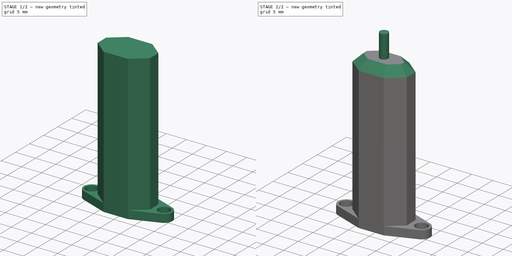
[diagram: build sequence overview — one tinted view per stage of 2, left to right]
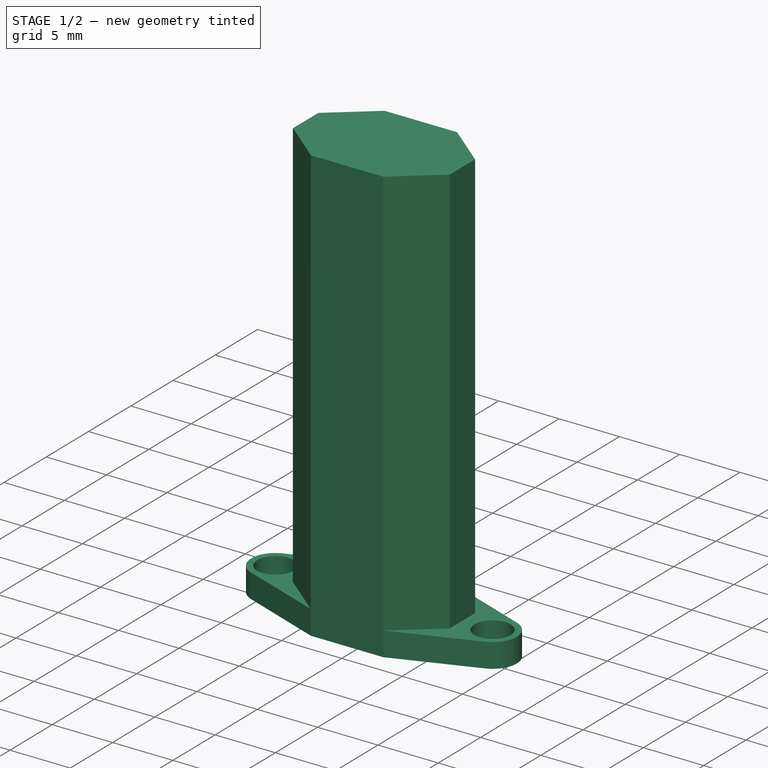
[diagram: stage 1 of 2 — iso view after this stage's code; geometry added in this stage tinted green]
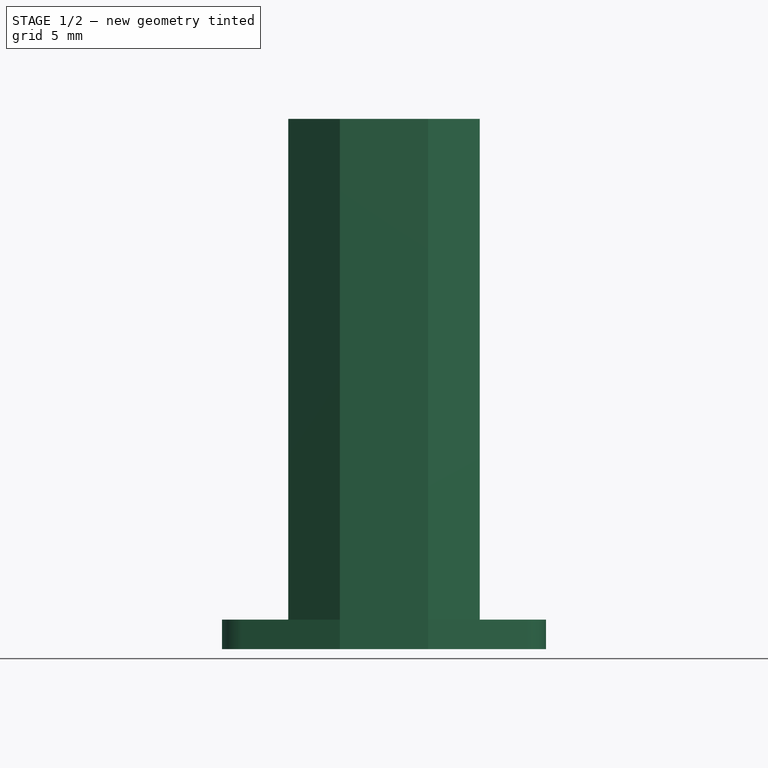
[diagram: stage 1 of 2 — front view after this stage's code; geometry added in this stage tinted green]
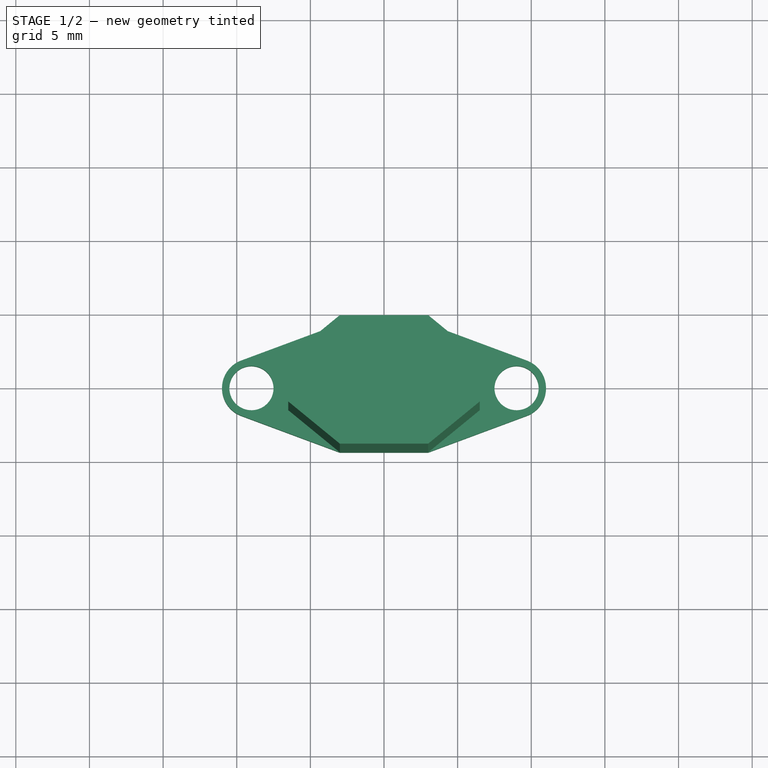
[diagram: stage 1 of 2 — top view after this stage's code; geometry added in this stage tinted green]
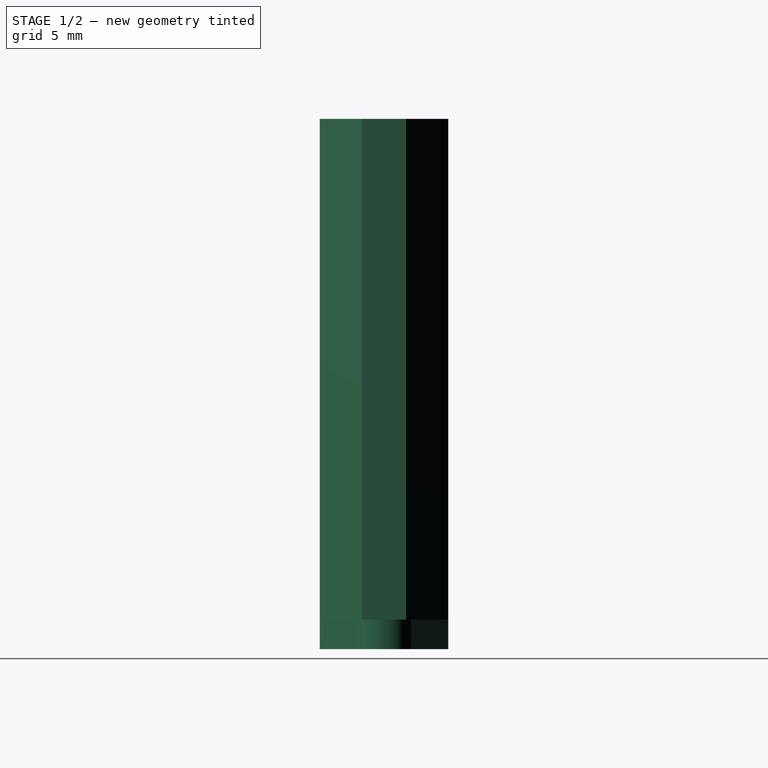
[diagram: stage 1 of 2 — right view after this stage's code; geometry added in this stage tinted green]
FCSTD DOCUMENT  (FreeCAD 0.18R14555 (Git shallow))
Label: bltouch
License: All rights reserved
LicenseURL: http://en.wikipedia.org/wiki/All_rights_reserved
objects: Sketcher::SketchObject×3, PartDesign::Pad×3, PartDesign::Chamfer×1, PartDesign::Body×1
note: 11 computed .brp shape members not serialized (recipe doc carries the construction recipe); baked Part::Feature solids carry a one-line shape summary decoded from their .brp

FEATURE [Sketcher::SketchObject] Sketch
  MapMode = 5
  Support = -> [XY_Plane]
  sketch-geometry (16):
    g0: ArcOfCircle CenterX=-9 CenterY=-7e-16 CenterZ=0 NormalX=0 NormalY=0 NormalZ=1 AngleXU=0 Radius=2 StartAngle=1.92682 EndAngle=4.35637
    g1: ArcOfCircle CenterX=9 CenterY=-4e-15 CenterZ=0 NormalX=0 NormalY=0 NormalZ=1 AngleXU=0 Radius=2 StartAngle=5.06841 EndAngle=7.49796
    g2: LineSegment StartX=-9.69709 StartY=1.87458 StartZ=0 EndX=-3 EndY=4.365 EndZ=0
    g3: LineSegment StartX=-3 StartY=4.365 StartZ=0 EndX=3 EndY=4.365 EndZ=0
    g4: LineSegment StartX=3 StartY=4.365 StartZ=0 EndX=9.69709 EndY=1.87458 EndZ=0
    g5: LineSegment StartX=9.69709 StartY=-1.87458 StartZ=0 EndX=3 EndY=-4.365 EndZ=0
    g6: LineSegment StartX=3 StartY=-4.365 StartZ=0 EndX=-3 EndY=-4.365 EndZ=0
    g7: LineSegment StartX=-3 StartY=-4.365 StartZ=0 EndX=-9.69709 EndY=-1.87458 EndZ=0
    g8: LineSegment [constr] StartX=-9.69709 StartY=1.87458 StartZ=0 EndX=9.69709 EndY=1.87458 EndZ=0
    g9: LineSegment [constr] StartX=-9.69709 StartY=-1.87458 StartZ=0 EndX=9.69709 EndY=-1.87458 EndZ=0
    g10: LineSegment [constr] StartX=3 StartY=-4.365 StartZ=0 EndX=3 EndY=4.365 EndZ=0
    g11: LineSegment [constr] StartX=-3 StartY=-4.365 StartZ=0 EndX=-3 EndY=4.365 EndZ=0
    g12: Circle CenterX=-9 CenterY=-7e-16 CenterZ=0 NormalX=0 NormalY=0 NormalZ=1 AngleXU=0 Radius=1.5
    g13: Circle CenterX=9 CenterY=-4e-15 CenterZ=0 NormalX=0 NormalY=0 NormalZ=1 AngleXU=0 Radius=1.5
    g14: LineSegment [constr] StartX=-3 StartY=4.365 StartZ=0 EndX=3 EndY=-4.365 EndZ=0
    g15: LineSegment [constr] StartX=-3 StartY=-4.365 StartZ=0 EndX=3 EndY=4.365 EndZ=0
  constraints (38):
    c: Coincident(g3,g2)
    c: Horizontal(g3)
    c: Coincident(g4,g3)
    c: Coincident(g6,g5)
    c: Coincident(g7,g6)
    c: Coincident(g8,g0)
    c: Coincident(g8,g1)
    c: Horizontal(g8)
    c: Coincident(g9,g0)
    c: Coincident(g9,g1)
    c: Horizontal(g9)
    c: Tangent(g2,g0) = 1.5708
    c: Tangent(g4,g1) = 1.5708
    c: Tangent(g5,g1) = 1.5708
    c: Tangent(g7,g0) = 1.5708
    c: Horizontal(g6)
    c: Coincident(g10,g5)
    c: Coincident(g10,g3)
    c: Vertical(g10)
    c: Coincident(g11,g6)
    c: Coincident(g11,g2)
    c: Vertical(g11)
    c: Equal(g2,g4)
    c: Equal(g7,g2)
    c: Coincident(g12,g0)
    c: Coincident(g13,g1)
    c: Equal(g12,g13)
    c: Radius(g12) = 1.5
    c: Radius(g0) = 2
    c: DistanceX(g3,g3) = 6
    c: DistanceY(g6,g2) = 8.73
    c: DistanceX(g0,g1) = 18
    c: Coincident(g14,g2)
    c: Coincident(g14,g5)
    c: Coincident(g15,g6)
    c: Coincident(g15,g3)
    c: PointOnObject(g-1,g14)
    c: PointOnObject(g-1,g15)
FEATURE [PartDesign::Pad] Pad
  Length = 2
  Length2 = 100
  Profile = -> Sketch
  Type = 0
FEATURE [Sketcher::SketchObject] Sketch001
  ExternalGeometry = -> [Pad]
  MapMode = 5
  Placement = pos=(0,0,2) rot=(0,0,1;0rad)
  Support = -> [Pad]
  sketch-geometry (10):
    g0: LineSegment StartX=-3 StartY=4.365 StartZ=0 EndX=-6.5 EndY=1.5 EndZ=0
    g1: LineSegment StartX=-6.5 StartY=1.5 StartZ=0 EndX=-6.5 EndY=-1.5 EndZ=0
    g2: LineSegment StartX=-6.5 StartY=-1.5 StartZ=0 EndX=-3 EndY=-4.365 EndZ=0
    g3: LineSegment StartX=-3 StartY=-4.365 StartZ=0 EndX=3 EndY=-4.365 EndZ=0
    g4: LineSegment StartX=3 StartY=-4.365 StartZ=0 EndX=6.5 EndY=-1.5 EndZ=0
    g5: LineSegment StartX=6.5 StartY=-1.5 StartZ=0 EndX=6.5 EndY=1.5 EndZ=0
    g6: LineSegment StartX=6.5 StartY=1.5 StartZ=0 EndX=3 EndY=4.365 EndZ=0
    g7: LineSegment StartX=3 StartY=4.365 StartZ=0 EndX=-3 EndY=4.365 EndZ=0
    g8: LineSegment [constr] StartX=-6.5 StartY=1.5 StartZ=0 EndX=6.5 EndY=1.5 EndZ=0
    g9: LineSegment [constr] StartX=6.5 StartY=-1.5 StartZ=0 EndX=-6.5 EndY=-1.5 EndZ=0
  constraints (24):
    c: Coincident(g0,g1)
    c: Vertical(g1)
    c: Coincident(g1,g2)
    c: Coincident(g2,g3)
    c: Coincident(g3,g4)
    c: Coincident(g4,g5)
    c: Vertical(g5)
    c: Coincident(g5,g6)
    c: Coincident(g6,g7)
    c: Coincident(g7,g0)
    c: Coincident(g8,g0)
    c: Coincident(g8,g5)
    c: Horizontal(g8)
    c: Coincident(g9,g4)
    c: Coincident(g9,g1)
    c: Horizontal(g9)
    c: Equal(g2,g0)
    c: Equal(g0,g6)
    c: Coincident(g0,g-3)
    c: Coincident(g6,g-3)
    c: Coincident(g2,g-4)
    c: Coincident(g3,g-4)
    c: DistanceY(g1,g1) = 3
    c: DistanceX(g0,g5) = 13
FEATURE [PartDesign::Pad] Pad001
  BaseFeature = -> Pad
  Length = 34
  Length2 = 100
  Profile = -> Sketch001
  Type = 0
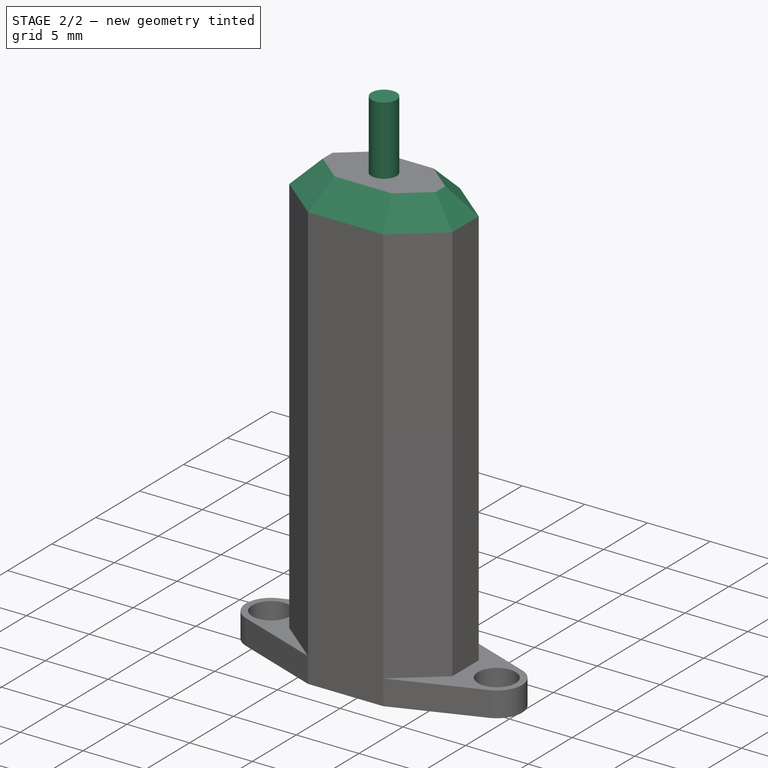
[diagram: stage 2 of 2 — iso view after this stage's code; geometry added in this stage tinted green]
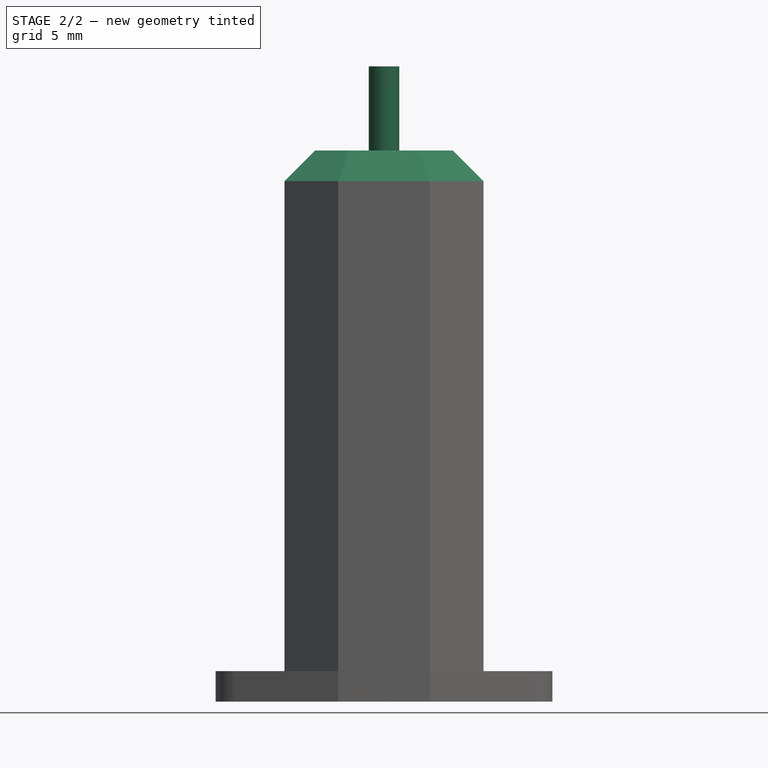
[diagram: stage 2 of 2 — front view after this stage's code; geometry added in this stage tinted green]
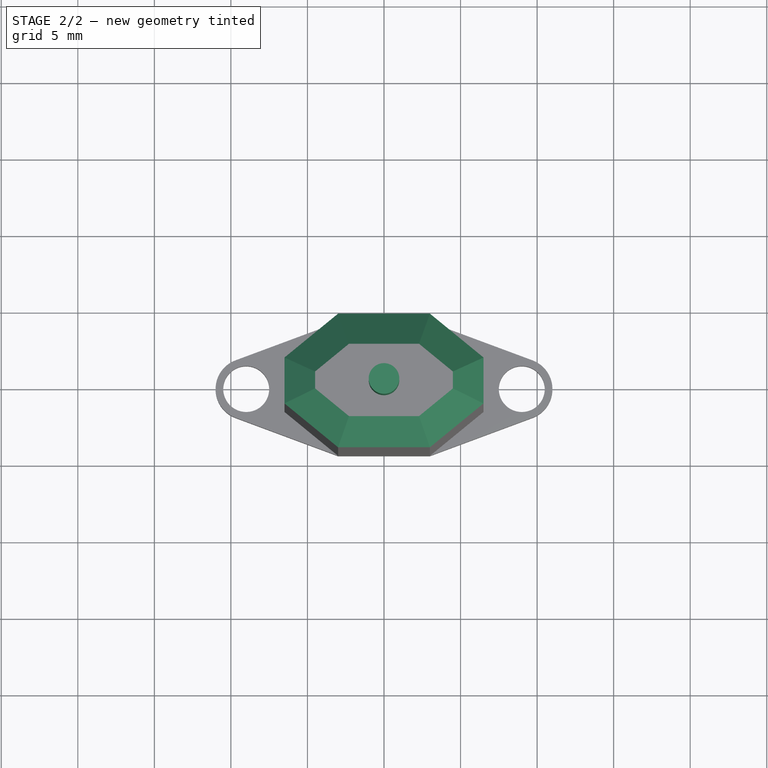
[diagram: stage 2 of 2 — top view after this stage's code; geometry added in this stage tinted green]
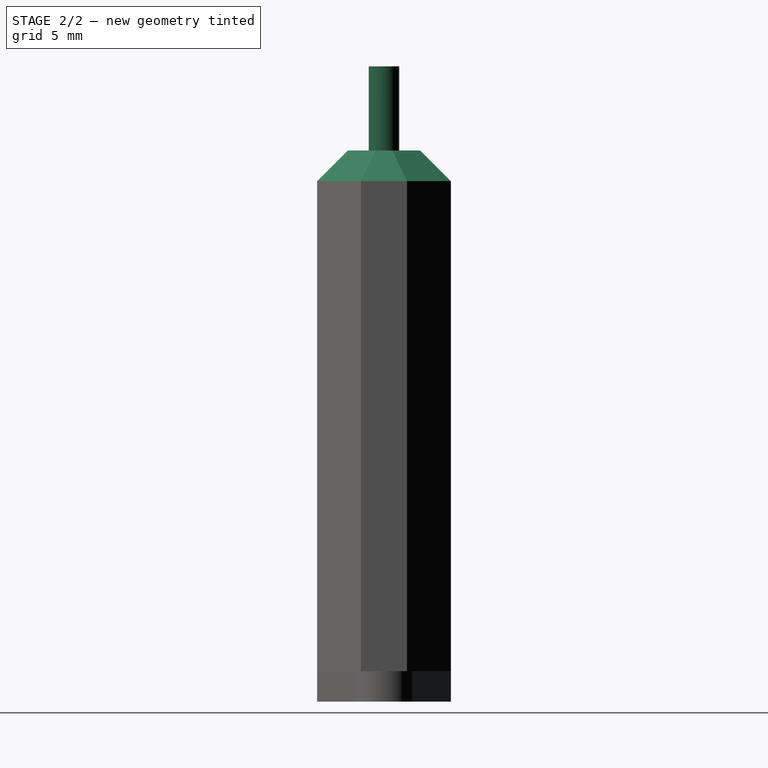
[diagram: stage 2 of 2 — right view after this stage's code; geometry added in this stage tinted green]
FEATURE [PartDesign::Chamfer] Chamfer
  Base = -> Pad001 [Edge50,Edge49,Edge48,Edge42,Edge40,Edge38,Edge28,Edge47]
  BaseFeature = -> Pad001
  Size = 2
FEATURE [Sketcher::SketchObject] Sketch002
  MapMode = 5
  Placement = pos=(0,0,36) rot=(0,0,1;0rad)
  Support = -> [Chamfer]
  sketch-geometry (1):
    g0: Circle CenterX=0 CenterY=0 CenterZ=0 NormalX=0 NormalY=0 NormalZ=1 AngleXU=0 Radius=1
  constraints (2):
    c: Coincident(g0,g-1)
    c: Radius(g0) = 1
FEATURE [PartDesign::Pad] Pad002
  BaseFeature = -> Chamfer
  Length = 5.5
  Length2 = 100
  Profile = -> Sketch002
  Type = 0
FEATURE [PartDesign::Body] Body
  Group = -> [Sketch,Pad,Sketch001,Pad001,Chamfer,Sketch002,Pad002]
  Origin = -> Origin
  Tip = -> Pad002
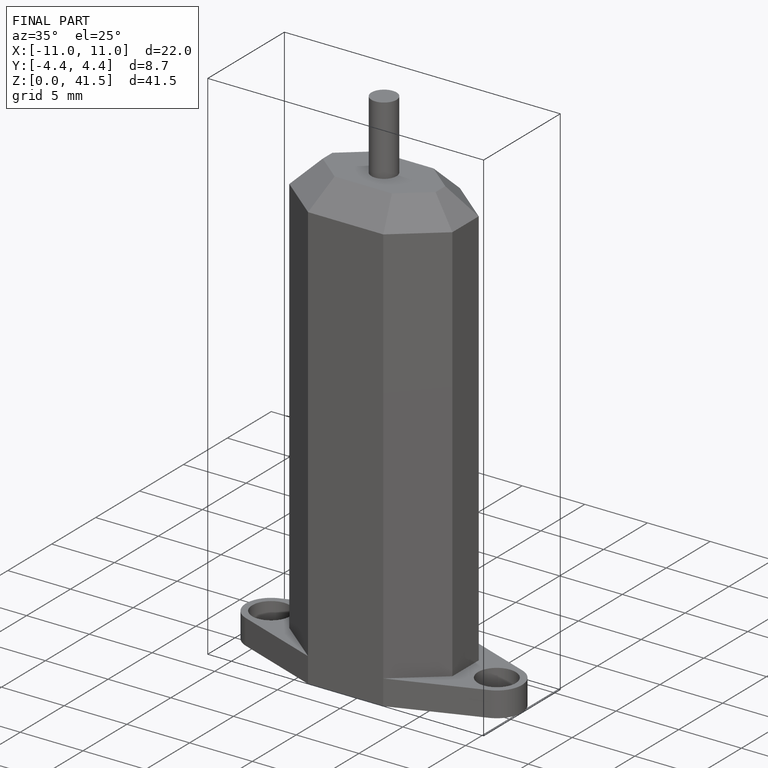
[diagram: finished part — iso view with bounding-box wireframe]
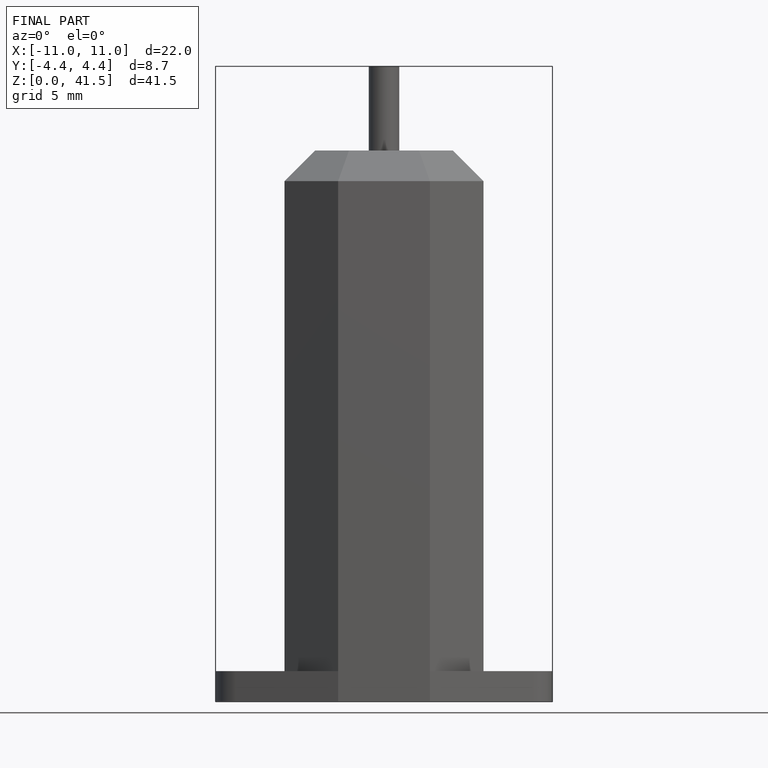
[diagram: finished part — front view with bounding-box wireframe]
